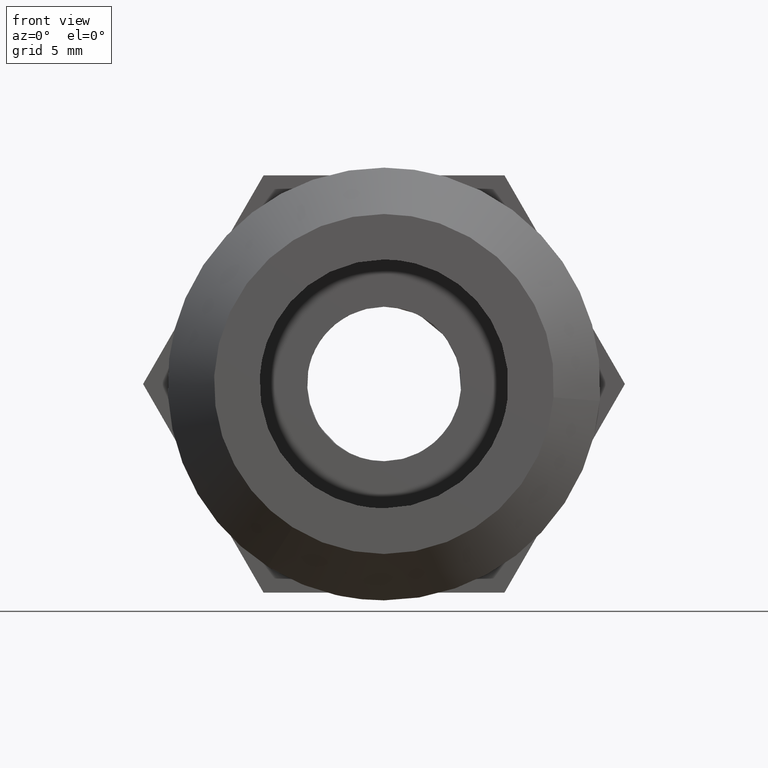
[diagram: clean part render]
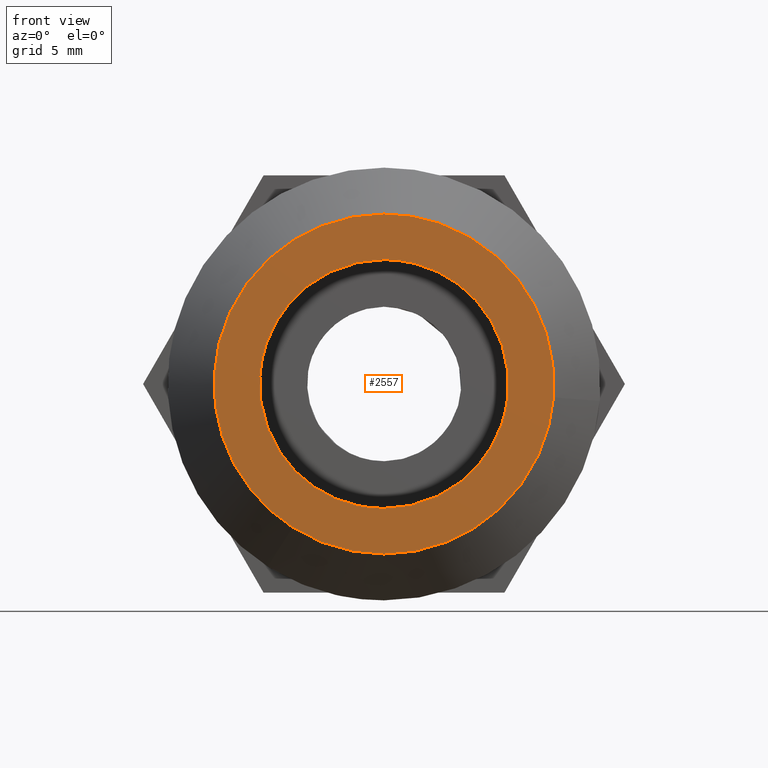
[diagram: same view with one face highlighted and labeled with its STEP entity id]
A machine part, front view. The second image highlights one B-rep face of the part: STEP entity #2557.
In plain terms, the highlighted face is a freeform B-spline surface patch.
Its self-contained STEP definition (entity closure, byte-faithful):
#854=CARTESIAN_POINT('',(-4.000000189989805,-7.993728213156628,-0.950165990759871));
#855=VERTEX_POINT('',#854);
#861=CARTESIAN_POINT('',(-4.000000189989805,0.0,8.050000382354480));
#862=VERTEX_POINT('',#861);
#863=CARTESIAN_POINT('',(-4.000000189989805,-7.993728213156628,-0.950165990759871));
#864=CARTESIAN_POINT('',(-4.000000189989805,-8.050000382354480,-0.476749313190205));
#865=CARTESIAN_POINT('',(-4.000000189989805,-8.050000382354480,0.0));
#866=CARTESIAN_POINT('',(-4.000000189989805,-8.050000382354481,8.050000382354481));
#867=CARTESIAN_POINT('',(-4.000000189989805,0.0,8.050000382354480));
#875=(BOUNDED_CURVE()B_SPLINE_CURVE(2,(#863,#864,#865,#866,#867),.UNSPECIFIED.,.F.,.U.)B_SPLINE_CURVE_WITH_KNOTS((3,2,3),(0.229562677395378,0.250000000000000,0.500000000000000),.UNSPECIFIED.)CURVE()GEOMETRIC_REPRESENTATION_ITEM()RATIONAL_B_SPLINE_CURVE((0.956027153800897,0.976056187193613,1.0,0.707106781186548,1.0))REPRESENTATION_ITEM(''));
#876=EDGE_CURVE('',#855,#862,#875,.T.);
#878=CARTESIAN_POINT('',(-4.000000189989807,8.034985525274804,0.491440499482453));
#879=VERTEX_POINT('',#878);
#880=CARTESIAN_POINT('',(-4.000000189989805,0.0,8.050000382354480));
#881=CARTESIAN_POINT('',(-4.000000189989805,7.572684702708010,8.050000382354480));
#882=CARTESIAN_POINT('',(-4.000000189989807,8.034985525274804,0.491440499482453));
#890=(BOUNDED_CURVE()B_SPLINE_CURVE(2,(#880,#881,#882),.UNSPECIFIED.,.F.,.U.)B_SPLINE_CURVE_WITH_KNOTS((3,3),(0.500000000000000,0.739332973714270),.UNSPECIFIED.)CURVE()GEOMETRIC_REPRESENTATION_ITEM()RATIONAL_B_SPLINE_CURVE((1.0,0.719603979842528,0.976072066260530))REPRESENTATION_ITEM(''));
#891=EDGE_CURVE('',#862,#879,#890,.T.);
#965=CARTESIAN_POINT('',(-4.000000189989805,0.0,-8.050000382354480));
#966=VERTEX_POINT('',#965);
#967=CARTESIAN_POINT('',(-4.000000189989806,8.034985525274804,0.491440499482453));
#968=CARTESIAN_POINT('',(-4.000000189989805,8.050000382354480,0.245949488371334));
#969=CARTESIAN_POINT('',(-4.000000189989805,8.050000382354480,0.0));
#970=CARTESIAN_POINT('',(-4.000000189989805,8.050000382354481,-8.050000382354481));
#971=CARTESIAN_POINT('',(-4.000000189989805,0.0,-8.050000382354480));
#979=(BOUNDED_CURVE()B_SPLINE_CURVE(2,(#967,#968,#969,#970,#971),.UNSPECIFIED.,.F.,.U.)B_SPLINE_CURVE_WITH_KNOTS((3,2,3),(0.739332973714271,0.750000000000000,1.0),.UNSPECIFIED.)CURVE()GEOMETRIC_REPRESENTATION_ITEM()RATIONAL_B_SPLINE_CURVE((0.976072066260531,0.987502801344020,1.0,0.707106781186548,1.0))REPRESENTATION_ITEM(''));
#980=EDGE_CURVE('',#879,#966,#979,.T.);
#982=CARTESIAN_POINT('',(-4.000000189989805,0.0,-8.050000382354480));
#983=CARTESIAN_POINT('',(-4.000000189989804,-7.149813959508342,-8.050000382354480));
#984=CARTESIAN_POINT('',(-4.000000189989805,-7.993728213156628,-0.950165990759871));
#992=(BOUNDED_CURVE()B_SPLINE_CURVE(2,(#982,#983,#984),.UNSPECIFIED.,.F.,.U.)B_SPLINE_CURVE_WITH_KNOTS((3,3),(0.0,0.229562677395378),.UNSPECIFIED.)CURVE()GEOMETRIC_REPRESENTATION_ITEM()RATIONAL_B_SPLINE_CURVE((1.0,0.731050593992935,0.956027153800897))REPRESENTATION_ITEM(''));
#993=EDGE_CURVE('',#966,#855,#992,.T.);
#1242=CARTESIAN_POINT('',(-4.000000189989723,5.916359008921535,-9.273440977972356));
#1243=VERTEX_POINT('',#1242);
#1249=CARTESIAN_POINT('',(-4.000000189989805,0.0,11.000000522471900));
#1250=VERTEX_POINT('',#1249);
#1251=CARTESIAN_POINT('',(-4.000000189989805,0.0,11.000000522471900));
#1252=CARTESIAN_POINT('',(-4.000000189989806,11.000000522471900,11.000000522471900));
#1253=CARTESIAN_POINT('',(-4.000000189989805,11.000000522471900,0.0));
#1254=CARTESIAN_POINT('',(-4.000000189989805,11.000000522471902,-6.030130502575575));
#1255=CARTESIAN_POINT('',(-4.000000189989723,5.916359008921536,-9.273440977972356));
#1263=(BOUNDED_CURVE()B_SPLINE_CURVE(2,(#1251,#1252,#1253,#1254,#1255),.UNSPECIFIED.,.F.,.U.)B_SPLINE_CURVE_WITH_KNOTS((3,2,3),(0.0,0.250000000000000,0.407950112627526),.UNSPECIFIED.)CURVE()GEOMETRIC_REPRESENTATION_ITEM()RATIONAL_B_SPLINE_CURVE((1.0,0.707106781186547,1.0,0.814949932402306,0.863729296954909))REPRESENTATION_ITEM(''));
#1264=EDGE_CURVE('',#1250,#1243,#1263,.T.);
#1266=CARTESIAN_POINT('',(-4.000000926203319,-10.966090500839810,-0.863049491671881));
#1267=VERTEX_POINT('',#1266);
#1268=CARTESIAN_POINT('',(-4.000000926203319,-10.966090500839817,-0.863049491671881));
#1269=CARTESIAN_POINT('',(-4.000000912833911,-10.999999801856072,-0.432190867352870));
#1270=CARTESIAN_POINT('',(-4.000000898370965,-10.999999816274430,0.000000055578912));
#1271=CARTESIAN_POINT('',(-4.000000530264209,-11.000000183246442,11.000000549169506));
#1272=CARTESIAN_POINT('',(-4.000000189989805,0.0,11.000000522471900));
#1280=(BOUNDED_CURVE()B_SPLINE_CURVE(2,(#1268,#1269,#1270,#1271,#1272),.UNSPECIFIED.,.F.,.U.)B_SPLINE_CURVE_WITH_KNOTS((3,2,3),(0.736331309145526,0.750000000000000,1.0),.UNSPECIFIED.)CURVE()GEOMETRIC_REPRESENTATION_ITEM()RATIONAL_B_SPLINE_CURVE((0.969723373937294,0.983986132554668,1.0,0.707106781186547,1.0))REPRESENTATION_ITEM(''));
#1281=EDGE_CURVE('',#1267,#1250,#1280,.T.);
#1385=CARTESIAN_POINT('',(-4.000000189989805,0.0,-11.000000522471900));
#1386=VERTEX_POINT('',#1385);
#1387=CARTESIAN_POINT('',(-4.000000189989805,0.0,-11.000000522471900));
#1388=CARTESIAN_POINT('',(-4.000000558096564,-10.168296030744532,-11.000000493590596));
#1389=CARTESIAN_POINT('',(-4.000000926203319,-10.966090500839817,-0.863049491671881));
#1397=(BOUNDED_CURVE()B_SPLINE_CURVE(2,(#1387,#1388,#1389),.UNSPECIFIED.,.F.,.U.)B_SPLINE_CURVE_WITH_KNOTS((3,3),(0.500000000000000,0.736331309145526),.UNSPECIFIED.)CURVE()GEOMETRIC_REPRESENTATION_ITEM()RATIONAL_B_SPLINE_CURVE((1.0,0.723120648631880,0.969723373937294))REPRESENTATION_ITEM(''));
#1398=EDGE_CURVE('',#1386,#1267,#1397,.T.);
#1400=CARTESIAN_POINT('',(-4.000000189989723,5.916359008921535,-9.273440977972356));
#1401=CARTESIAN_POINT('',(-4.000000189989806,3.210108761645579,-11.000000522471902));
#1402=CARTESIAN_POINT('',(-4.000000189989805,0.0,-11.000000522471900));
#1410=(BOUNDED_CURVE()B_SPLINE_CURVE(2,(#1400,#1401,#1402),.UNSPECIFIED.,.F.,.U.)B_SPLINE_CURVE_WITH_KNOTS((3,3),(0.407950112627526,0.500000000000000),.UNSPECIFIED.)CURVE()GEOMETRIC_REPRESENTATION_ITEM()RATIONAL_B_SPLINE_CURVE((0.863729296954909,0.892156848784242,1.0))REPRESENTATION_ITEM(''));
#1411=EDGE_CURVE('',#1243,#1386,#1410,.T.);
#2540=CARTESIAN_POINT('',(-4.000000189989805,-12.095500940949050,12.098901151587381));
#2541=CARTESIAN_POINT('',(-4.000000189989805,-12.095500940949050,-12.098901151587381));
#2542=CARTESIAN_POINT('',(-4.000000189989805,12.094671083321821,12.098901151587381));
#2543=CARTESIAN_POINT('',(-4.000000189989805,12.094671083321821,-12.098901151587381));
#2544=B_SPLINE_SURFACE_WITH_KNOTS('',1,1,((#2540,#2542),(#2541,#2543)),.UNSPECIFIED.,.F.,.F.,.U.,(2,2),(2,2),(0.0,24.197802303174761),(0.0,24.190172024270868),.UNSPECIFIED.);
#2545=ORIENTED_EDGE('',*,*,#1264,.T.);
#2546=ORIENTED_EDGE('',*,*,#1411,.T.);
#2547=ORIENTED_EDGE('',*,*,#1398,.T.);
#2548=ORIENTED_EDGE('',*,*,#1281,.T.);
#2549=EDGE_LOOP('',(#2545,#2546,#2547,#2548));
#2550=FACE_OUTER_BOUND('',#2549,.T.);
#2551=ORIENTED_EDGE('',*,*,#891,.F.);
#2552=ORIENTED_EDGE('',*,*,#876,.F.);
#2553=ORIENTED_EDGE('',*,*,#993,.F.);
#2554=ORIENTED_EDGE('',*,*,#980,.F.);
#2555=EDGE_LOOP('',(#2551,#2552,#2553,#2554));
#2556=FACE_BOUND('',#2555,.T.);
#2557=ADVANCED_FACE('',(#2550,#2556),#2544,.F.);